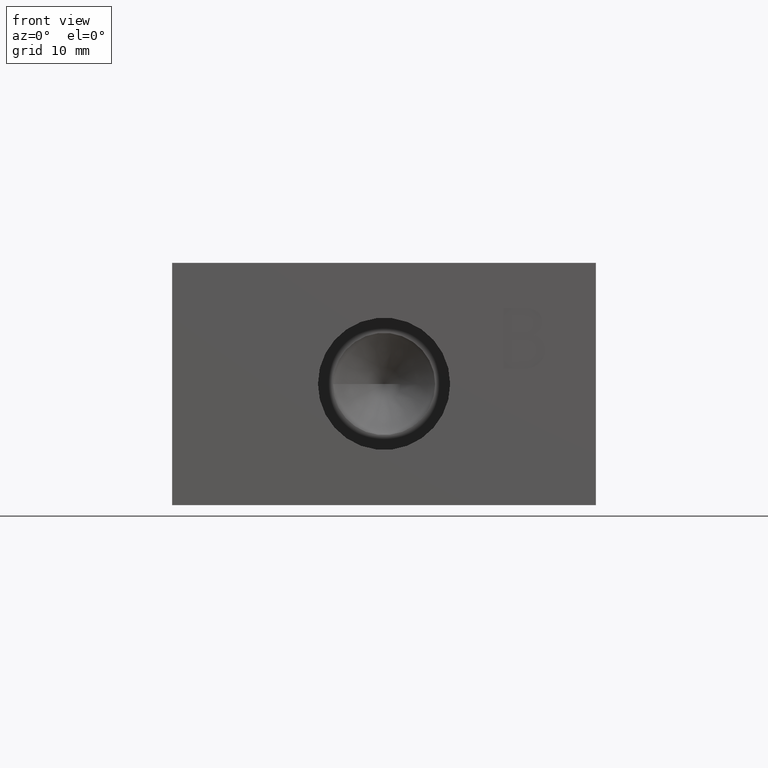
[diagram: clean part render]
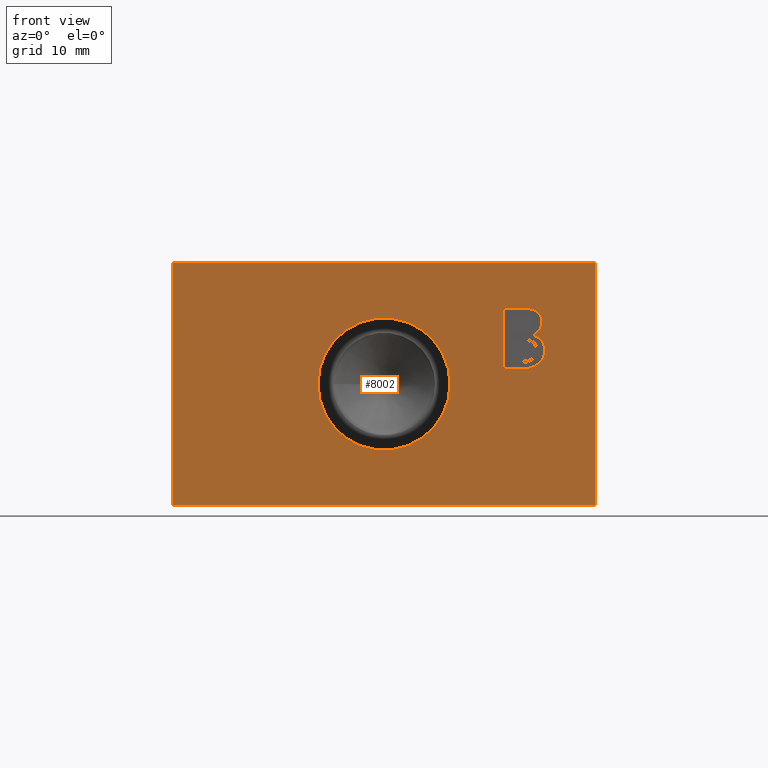
[diagram: same view with one face highlighted and labeled with its STEP entity id]
A machine part, front view. The second image highlights one B-rep face of the part: STEP entity #8002.
In plain terms, the highlighted planar face has unit normal (0, -1, 0).
Its self-contained STEP definition (entity closure, byte-faithful):
#55=CIRCLE('',#8343,6.9342);
#142=FACE_BOUND('',#1258,.T.);
#143=FACE_BOUND('',#1259,.T.);
#436=PLANE('',#8342);
#809=FACE_OUTER_BOUND('',#1257,.T.);
#1257=EDGE_LOOP('',(#6967,#6968,#6969,#6970));
#1258=EDGE_LOOP('',(#6971,#6972,#6973,#6974,#6975,#6976,#6977,#6978,#6979,
#6980));
#1259=EDGE_LOOP('',(#6981));
#1682=LINE('',#11924,#2530);
#2124=LINE('',#13121,#2972);
#2130=LINE('',#13184,#2978);
#2133=LINE('',#13190,#2981);
#2136=LINE('',#13196,#2984);
#2140=LINE('',#13238,#2988);
#2141=LINE('',#13240,#2989);
#2142=LINE('',#13241,#2990);
#2530=VECTOR('',#8999,10.);
#2972=VECTOR('',#9767,10.);
#2978=VECTOR('',#9775,10.);
#2981=VECTOR('',#9780,10.);
#2984=VECTOR('',#9785,10.);
#2988=VECTOR('',#9793,10.);
#2989=VECTOR('',#9794,10.);
#2990=VECTOR('',#9795,10.);
#3203=B_SPLINE_CURVE_WITH_KNOTS('',2,(#13107,#13108,#13109,#13110),
 .UNSPECIFIED.,.F.,.F.,(3,1,3),(0.,1.,2.),.UNSPECIFIED.);
#3205=B_SPLINE_CURVE_WITH_KNOTS('',2,(#13134,#13135,#13136,#13137),
 .UNSPECIFIED.,.F.,.F.,(3,1,3),(0.,1.,2.),.UNSPECIFIED.);
#3207=B_SPLINE_CURVE_WITH_KNOTS('',2,(#13153,#13154,#13155,#13156),
 .UNSPECIFIED.,.F.,.F.,(3,1,3),(0.,1.,2.),.UNSPECIFIED.);
#3209=B_SPLINE_CURVE_WITH_KNOTS('',2,(#13172,#13173,#13174,#13175),
 .UNSPECIFIED.,.F.,.F.,(3,1,3),(0.,1.,2.),.UNSPECIFIED.);
#3211=B_SPLINE_CURVE_WITH_KNOTS('',2,(#13209,#13210,#13211,#13212),
 .UNSPECIFIED.,.F.,.F.,(3,1,3),(0.,1.,2.),.UNSPECIFIED.);
#3213=B_SPLINE_CURVE_WITH_KNOTS('',2,(#13227,#13228,#13229,#13230),
 .UNSPECIFIED.,.F.,.F.,(3,1,3),(0.,1.,2.),.UNSPECIFIED.);
#3538=VERTEX_POINT('',#11917);
#3541=VERTEX_POINT('',#11922);
#3857=VERTEX_POINT('',#13105);
#3858=VERTEX_POINT('',#13106);
#3861=VERTEX_POINT('',#13120);
#3863=VERTEX_POINT('',#13133);
#3865=VERTEX_POINT('',#13152);
#3867=VERTEX_POINT('',#13171);
#3869=VERTEX_POINT('',#13183);
#3871=VERTEX_POINT('',#13189);
#3873=VERTEX_POINT('',#13195);
#3875=VERTEX_POINT('',#13208);
#3877=VERTEX_POINT('',#13237);
#3878=VERTEX_POINT('',#13239);
#3879=VERTEX_POINT('',#13242);
#4429=EDGE_CURVE('',#3538,#3541,#1682,.T.);
#4902=EDGE_CURVE('',#3857,#3858,#3203,.T.);
#4906=EDGE_CURVE('',#3861,#3857,#2124,.T.);
#4909=EDGE_CURVE('',#3863,#3861,#3205,.T.);
#4912=EDGE_CURVE('',#3865,#3863,#3207,.T.);
#4915=EDGE_CURVE('',#3867,#3865,#3209,.T.);
#4918=EDGE_CURVE('',#3869,#3867,#2130,.T.);
#4921=EDGE_CURVE('',#3871,#3869,#2133,.T.);
#4924=EDGE_CURVE('',#3873,#3871,#2136,.T.);
#4927=EDGE_CURVE('',#3875,#3873,#3211,.T.);
#4930=EDGE_CURVE('',#3858,#3875,#3213,.T.);
#4932=EDGE_CURVE('',#3877,#3538,#2140,.T.);
#4933=EDGE_CURVE('',#3878,#3541,#2141,.T.);
#4934=EDGE_CURVE('',#3877,#3878,#2142,.T.);
#4935=EDGE_CURVE('',#3879,#3879,#55,.T.);
#6967=ORIENTED_EDGE('',*,*,#4932,.T.);
#6968=ORIENTED_EDGE('',*,*,#4429,.T.);
#6969=ORIENTED_EDGE('',*,*,#4933,.F.);
#6970=ORIENTED_EDGE('',*,*,#4934,.F.);
#6971=ORIENTED_EDGE('',*,*,#4902,.T.);
#6972=ORIENTED_EDGE('',*,*,#4930,.T.);
#6973=ORIENTED_EDGE('',*,*,#4927,.T.);
#6974=ORIENTED_EDGE('',*,*,#4924,.T.);
#6975=ORIENTED_EDGE('',*,*,#4921,.T.);
#6976=ORIENTED_EDGE('',*,*,#4918,.T.);
#6977=ORIENTED_EDGE('',*,*,#4915,.T.);
#6978=ORIENTED_EDGE('',*,*,#4912,.T.);
#6979=ORIENTED_EDGE('',*,*,#4909,.T.);
#6980=ORIENTED_EDGE('',*,*,#4906,.T.);
#6981=ORIENTED_EDGE('',*,*,#4935,.T.);
#8002=ADVANCED_FACE('',(#809,#142,#143),#436,.T.);
#8342=AXIS2_PLACEMENT_3D('',#13236,#9791,#9792);
#8343=AXIS2_PLACEMENT_3D('',#13243,#9796,#9797);
#8999=DIRECTION('',(0.,0.,1.));
#9767=DIRECTION('',(0.,0.,-1.));
#9775=DIRECTION('',(1.,0.,0.));
#9780=DIRECTION('',(0.,0.,1.));
#9785=DIRECTION('',(-1.,0.,0.));
#9791=DIRECTION('center_axis',(0.,-1.,0.));
#9792=DIRECTION('ref_axis',(1.,0.,0.));
#9793=DIRECTION('',(1.,0.,0.));
#9794=DIRECTION('',(1.,0.,0.));
#9795=DIRECTION('',(0.,0.,1.));
#9796=DIRECTION('center_axis',(0.,1.,0.));
#9797=DIRECTION('ref_axis',(1.,0.,0.));
#11917=CARTESIAN_POINT('',(44.45,0.,0.));
#11922=CARTESIAN_POINT('',(44.45,0.,25.4));
#11924=CARTESIAN_POINT('',(44.45,0.,0.));
#13105=CARTESIAN_POINT('',(37.8928787927767,0.,17.8175647768055));
#13106=CARTESIAN_POINT('',(39.0815740747622,0.,16.2377836011797));
#13107=CARTESIAN_POINT('Ctrl Pts',(37.8928787927767,0.,17.8175647768055));
#13108=CARTESIAN_POINT('Ctrl Pts',(38.4589241651507,0.,17.663188766158));
#13109=CARTESIAN_POINT('Ctrl Pts',(39.0815740747622,0.,16.8449959097264));
#13110=CARTESIAN_POINT('Ctrl Pts',(39.0815740747622,0.,16.2377836011797));
#13120=CARTESIAN_POINT('',(37.8928787927767,0.,17.848439978935));
#13121=CARTESIAN_POINT('',(37.8928787927767,0.,8.92421998946748));
#13133=CARTESIAN_POINT('',(38.7831137875104,0.,19.2069488726327));
#13134=CARTESIAN_POINT('Ctrl Pts',(38.7831137875104,0.,19.2069488726327));
#13135=CARTESIAN_POINT('Ctrl Pts',(38.7831137875104,0.,18.759258441755));
#13136=CARTESIAN_POINT('Ctrl Pts',(38.3096940215248,0.,18.0491287927767));
#13137=CARTESIAN_POINT('Ctrl Pts',(37.8928787927767,0.,17.848439978935));
#13152=CARTESIAN_POINT('',(38.1244428087479,0.,20.3802065535534));
#13153=CARTESIAN_POINT('Ctrl Pts',(38.1244428087479,0.,20.3802065535535));
#13154=CARTESIAN_POINT('Ctrl Pts',(38.4692158991939,0.,20.2001012077981));
#13155=CARTESIAN_POINT('Ctrl Pts',(38.7831137875104,0.,19.6083265003161));
#13156=CARTESIAN_POINT('Ctrl Pts',(38.7831137875104,0.,19.2069488726327));
#13171=CARTESIAN_POINT('',(36.4571818937552,0.,20.6374999046326));
#13172=CARTESIAN_POINT('Ctrl Pts',(36.4571818937552,0.,20.6374999046326));
#13173=CARTESIAN_POINT('Ctrl Pts',(37.1364363406041,0.,20.6374999046326));
#13174=CARTESIAN_POINT('Ctrl Pts',(37.8156907874529,0.,20.5500201652657));
#13175=CARTESIAN_POINT('Ctrl Pts',(38.1244428087479,0.,20.3802065535535));
#13183=CARTESIAN_POINT('',(34.7744833776978,0.,20.6374999046326));
#13184=CARTESIAN_POINT('',(17.3872416888489,0.,20.6374999046326));
#13189=CARTESIAN_POINT('',(34.7744833776978,0.,14.2875));
#13190=CARTESIAN_POINT('',(34.7744833776978,0.,7.14375));
#13195=CARTESIAN_POINT('',(36.5961203033379,0.,14.2875));
#13196=CARTESIAN_POINT('',(18.298060151669,0.,14.2875));
#13208=CARTESIAN_POINT('',(38.4229030959996,0.,14.8020867021582));
#13209=CARTESIAN_POINT('Ctrl Pts',(38.4229030959997,0.,14.8020867021582));
#13210=CARTESIAN_POINT('Ctrl Pts',(38.0626924044889,0.,14.5242098829928));
#13211=CARTESIAN_POINT('Ctrl Pts',(37.2444995480573,0.,14.2875));
#13212=CARTESIAN_POINT('Ctrl Pts',(36.5961203033379,0.,14.2875));
#13227=CARTESIAN_POINT('Ctrl Pts',(39.0815740747622,0.,16.2377836011797));
#13228=CARTESIAN_POINT('Ctrl Pts',(39.0815740747622,0.,15.7643638351941));
#13229=CARTESIAN_POINT('Ctrl Pts',(38.7213633832514,0.,15.038796585151));
#13230=CARTESIAN_POINT('Ctrl Pts',(38.4229030959997,0.,14.8020867021582));
#13236=CARTESIAN_POINT('Origin',(0.,0.,0.));
#13237=CARTESIAN_POINT('',(0.,0.,0.));
#13238=CARTESIAN_POINT('',(0.,0.,0.));
#13239=CARTESIAN_POINT('',(0.,0.,25.4));
#13240=CARTESIAN_POINT('',(0.,0.,25.4));
#13241=CARTESIAN_POINT('',(0.,0.,0.));
#13242=CARTESIAN_POINT('',(15.2908,0.,12.7));
#13243=CARTESIAN_POINT('Origin',(22.225,0.,12.7));